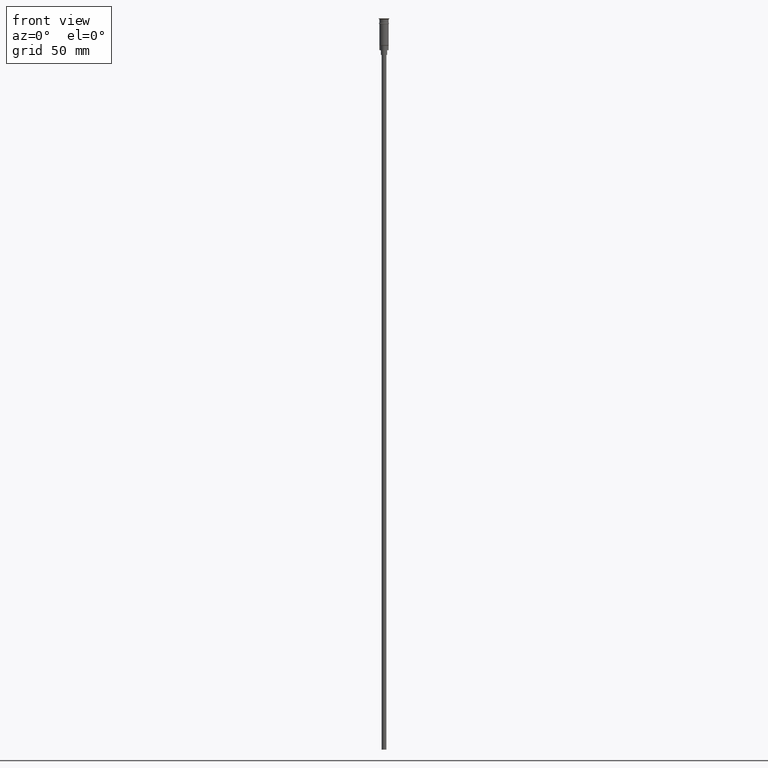
[diagram: clean part render]
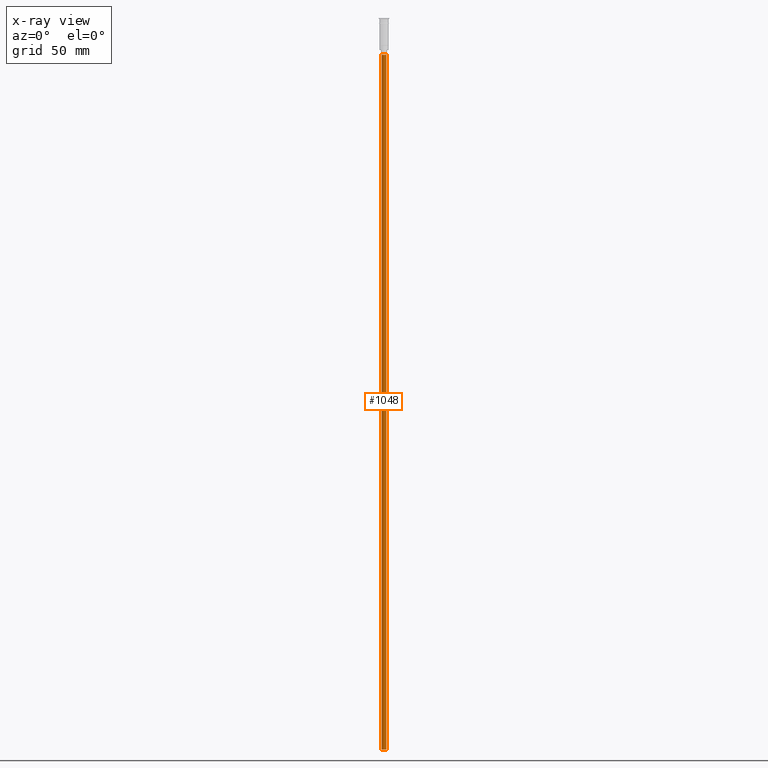
[diagram: x-ray — body ghosted, one internal face saturated and labeled with its STEP entity id]
A machine part, front view, then the same camera in x-ray: the body is ghosted and one INTERNAL B-rep face — a face not visible from any outside direction — is saturated and labeled: STEP entity #1048.
In plain terms, the highlighted cylindrical surface (edge-blend (fillet) strip) has radius 1.5 mm, axis along (-0, -0, 1).
Its self-contained STEP definition (entity closure, byte-faithful):
#28 = DIRECTION ( 'NONE',  ( -1.000000000000000000, 0.000000000000000000, 0.000000000000000000 ) ) ;
#146 = DIRECTION ( 'NONE',  ( -0.000000000000000000, -0.000000000000000000, 1.000000000000000000 ) ) ;
#148 = CARTESIAN_POINT ( 'NONE',  ( -1.500000000000000222, 1.836970198721030181E-16, -470.5000000000000568 ) ) ;
#173 = EDGE_CURVE ( 'NONE', #1045, #699, #809, .T. ) ;
#193 = VECTOR ( 'NONE', #146, 1000.000000000000000 ) ;
#202 = EDGE_CURVE ( 'NONE', #699, #1340, #631, .T. ) ;
#240 = VECTOR ( 'NONE', #1069, 1000.000000000000000 ) ;
#255 = DIRECTION ( 'NONE',  ( -1.000000000000000000, 0.000000000000000000, 0.000000000000000000 ) ) ;
#288 = ORIENTED_EDGE ( 'NONE', *, *, #1205, .F. ) ;
#293 = AXIS2_PLACEMENT_3D ( 'NONE', #1602, #692, #255 ) ;
#445 = ORIENTED_EDGE ( 'NONE', *, *, #202, .T. ) ;
#448 = CARTESIAN_POINT ( 'NONE',  ( -1.500000000000000222, 1.836970198721030181E-16, -23.50000000000000000 ) ) ;
#631 = CIRCLE ( 'NONE', #293, 1.500000000000000222 ) ;
#692 = DIRECTION ( 'NONE',  ( 0.000000000000000000, 0.000000000000000000, -1.000000000000000000 ) ) ;
#699 = VERTEX_POINT ( 'NONE', #1245 ) ;
#704 = ORIENTED_EDGE ( 'NONE', *, *, #173, .T. ) ;
#809 = LINE ( 'NONE', #1325, #240 ) ;
#848 = FACE_OUTER_BOUND ( 'NONE', #1401, .T. ) ;
#976 = DIRECTION ( 'NONE',  ( -0.000000000000000000, -0.000000000000000000, 1.000000000000000000 ) ) ;
#988 = VERTEX_POINT ( 'NONE', #148 ) ;
#1045 = VERTEX_POINT ( 'NONE', #1473 ) ;
#1048 = ADVANCED_FACE ( 'NONE', ( #848 ), #1562, .T. ) ;
#1069 = DIRECTION ( 'NONE',  ( -0.000000000000000000, -0.000000000000000000, 1.000000000000000000 ) ) ;
#1110 = CARTESIAN_POINT ( 'NONE',  ( 0.000000000000000000, 0.000000000000000000, -470.5000000000000568 ) ) ;
#1169 = CARTESIAN_POINT ( 'NONE',  ( 0.000000000000000000, 0.000000000000000000, -470.5000000000000568 ) ) ;
#1182 = EDGE_CURVE ( 'NONE', #988, #1340, #1231, .T. ) ;
#1205 = EDGE_CURVE ( 'NONE', #1045, #988, #1343, .T. ) ;
#1231 = LINE ( 'NONE', #1371, #193 ) ;
#1245 = CARTESIAN_POINT ( 'NONE',  ( 1.500000000000000222, 0.000000000000000000, -23.50000000000000000 ) ) ;
#1287 = AXIS2_PLACEMENT_3D ( 'NONE', #1169, #976, #1310 ) ;
#1310 = DIRECTION ( 'NONE',  ( 1.000000000000000000, 0.000000000000000000, 0.000000000000000000 ) ) ;
#1325 = CARTESIAN_POINT ( 'NONE',  ( 1.500000000000000222, 0.000000000000000000, -470.5000000000000568 ) ) ;
#1340 = VERTEX_POINT ( 'NONE', #448 ) ;
#1343 = CIRCLE ( 'NONE', #1444, 1.500000000000000222 ) ;
#1371 = CARTESIAN_POINT ( 'NONE',  ( -1.500000000000000222, 1.836970198721030181E-16, -470.5000000000000568 ) ) ;
#1385 = DIRECTION ( 'NONE',  ( 0.000000000000000000, 0.000000000000000000, -1.000000000000000000 ) ) ;
#1401 = EDGE_LOOP ( 'NONE', ( #1454, #288, #704, #445 ) ) ;
#1444 = AXIS2_PLACEMENT_3D ( 'NONE', #1110, #1385, #28 ) ;
#1454 = ORIENTED_EDGE ( 'NONE', *, *, #1182, .F. ) ;
#1473 = CARTESIAN_POINT ( 'NONE',  ( 1.500000000000000222, 0.000000000000000000, -470.5000000000000568 ) ) ;
#1562 = CYLINDRICAL_SURFACE ( 'NONE', #1287, 1.500000000000000222 ) ;
#1602 = CARTESIAN_POINT ( 'NONE',  ( 0.000000000000000000, 0.000000000000000000, -23.50000000000000000 ) ) ;